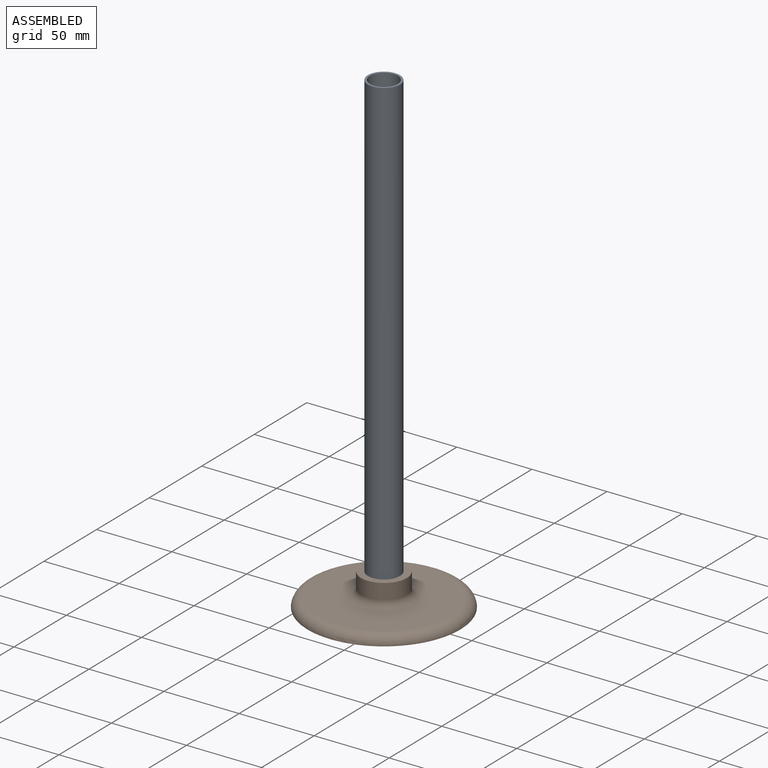
[diagram: assembled view]
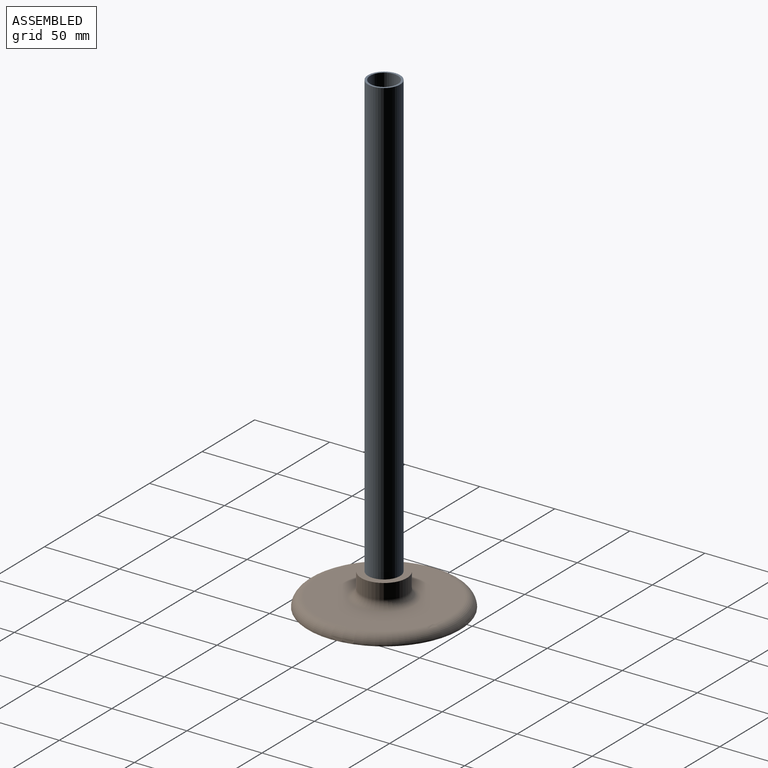
[diagram: assembled view, second angle]
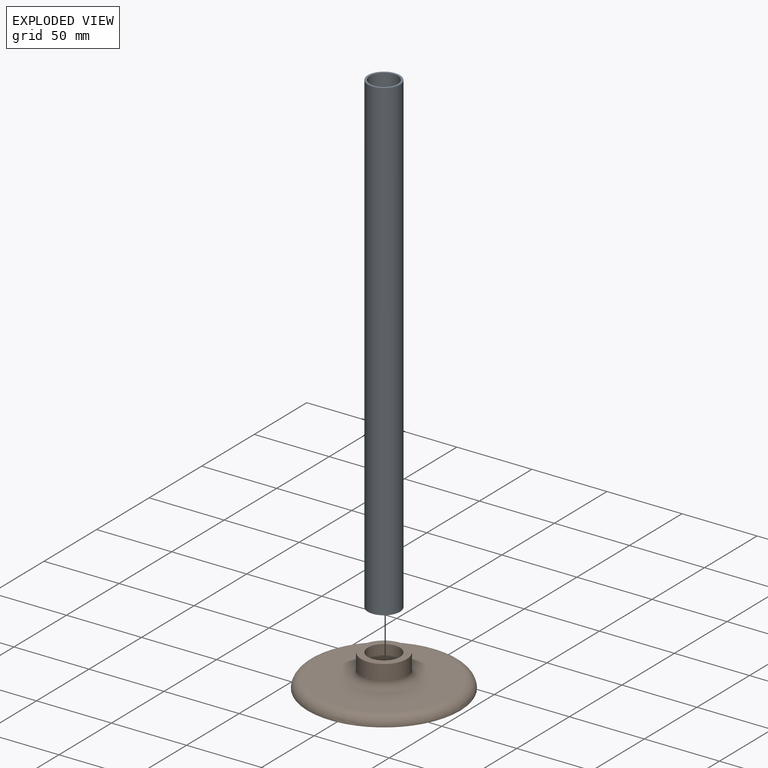
[diagram: exploded view]
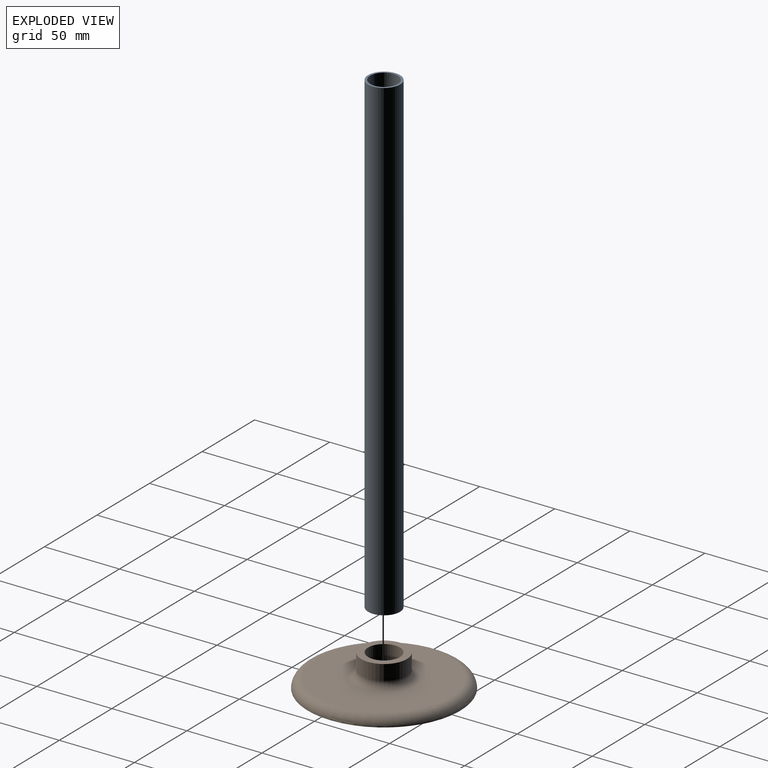
[diagram: exploded view, second angle]
ASSEMBLY  parts=2 mates=2
PART A: 4 faces, bbox 21.3x21.3x317.5 mm
  f0: cylinder r=9.28mm len=317.5mm, axis (0,0,-1), area 18520.2mm2, adj f2,f3
  f1: cylinder r=10.67mm len=317.5mm, axis (0,0,-1), area 21281.7mm2, adj f2,f3
  f2: plane 21.34x21.34mm, normal (0,0,1), area 86.8mm2, adj f0,f1
  f3: plane 21.34x21.34mm, normal (0,0,-1), area 86.8mm2, adj f0,f1
PART B: 7 faces, bbox 110x110x21.7 mm
  f0: cylinder r=10.67mm len=21.59mm, axis (0,0,-1), area 1447.2mm2, adj f2,f4
  f1: plane 88.64x88.64mm, normal (0,0,1), area 4873.1mm2, adj f5,f6
  f2: plane 101.6x101.6mm, normal (0,0,-1), area 7749.8mm2, adj f0,f5
  f3: cylinder r=15.24mm len=30.48mm, axis (0,0,-1), area 972.9mm2, adj f4,f6
  f4: plane 30.48x30.48mm, normal (0,0,1), area 372.1mm2, adj f0,f3
  f5: torus R=44.32mm, axis (0,0,-1), area 3057.4mm2, adj f1,f2
  f6: torus R=20.32mm, axis (0,0,1), area 856.6mm2, adj f1,f3
PLACE A t=(2.39,13.01,-19.67)mm
PLACE B t=(2.39,13.01,-19.67)mm
MATE parallel B.f0 <-> A.f1  axis (0,0,-1) through (2.39,13.01,-19.67)mm
MATE planar A.f1 <-> B.f5  axis (0,0,-1) through (2.39,13.01,-19.67)mm
